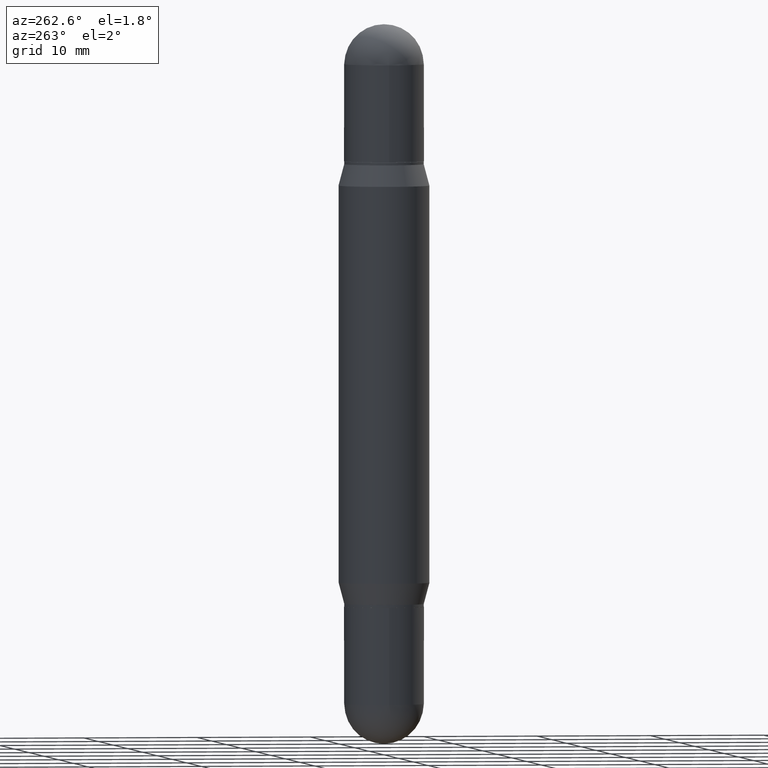
[diagram: clean part render]
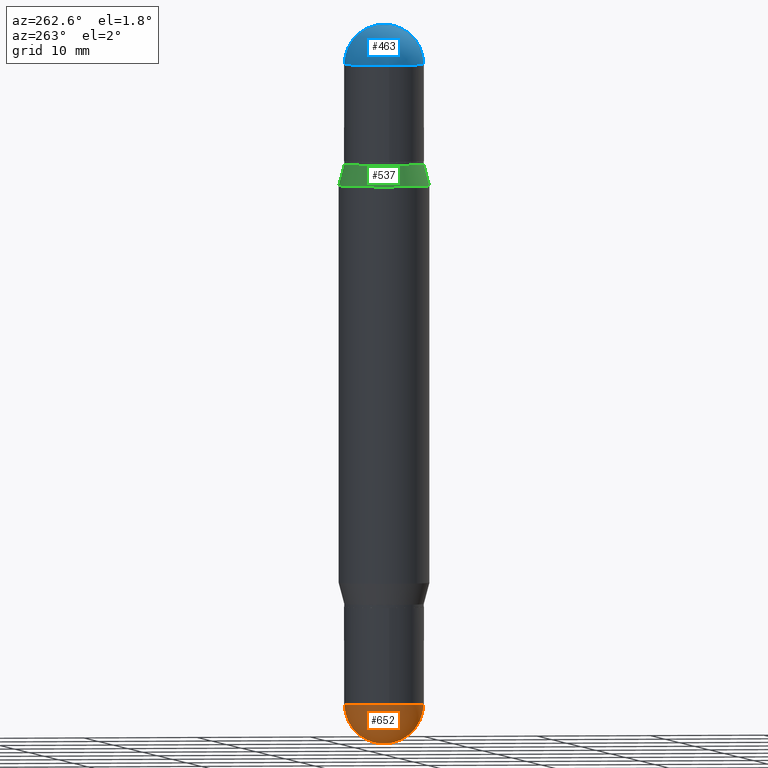
[diagram: same view with three faces highlighted in distinct colors, each labeled with its STEP entity id]
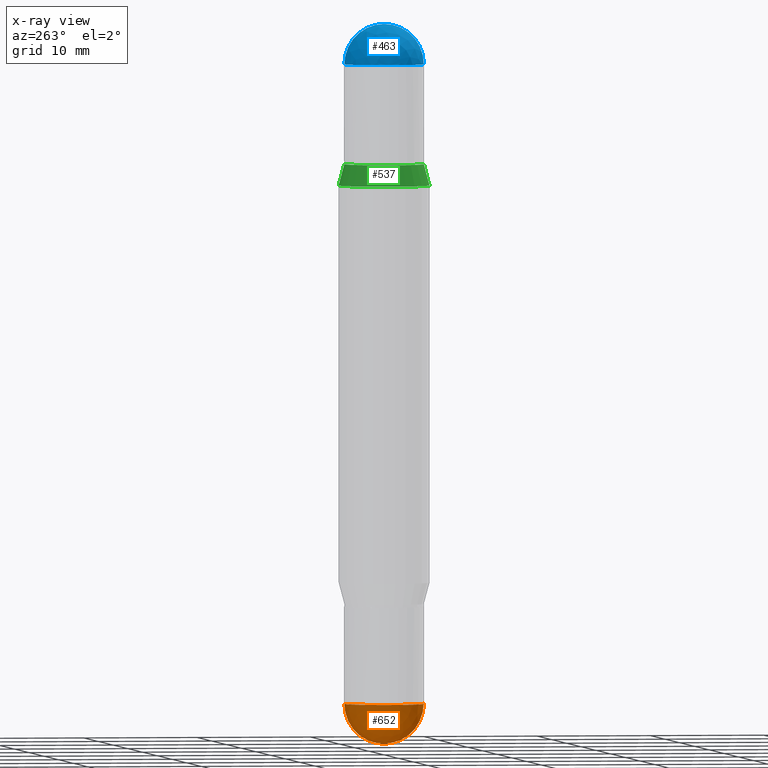
[diagram: x-ray of the same camera — body ghosted, the three highlighted faces saturated]
A machine part, auxiliary view with three faces highlighted in distinct colors.
The next image is the same camera in x-ray (body ghosted, the three faces saturated) — at least one of them is partly hidden behind the body in this view.
Their STEP definitions:

[orange] entity #652 — the highlighted spherical surface has radius 3.5001 mm.
#19 = DIRECTION ( 'NONE',  ( 6.982962677686265922E-15, 1.000000000000000000, -3.964946289788478530E-15 ) ) ;
#20 = CIRCLE ( 'NONE', #889, 0.1378000000000000613 ) ;
#29 = VERTEX_POINT ( 'NONE', #937 ) ;
#48 = EDGE_CURVE ( 'NONE', #29, #235, #565, .T. ) ;
#72 = CARTESIAN_POINT ( 'NONE',  ( 5.760493897703991812E-29, -8.132993245951958544E-15, -2.342500000000000249 ) ) ;
#104 = CARTESIAN_POINT ( 'NONE',  ( 5.760493897703991812E-29, -8.132993245951958544E-15, -2.342500000000000249 ) ) ;
#150 = EDGE_LOOP ( 'NONE', ( #788, #305, #218, #394 ) ) ;
#189 = CARTESIAN_POINT ( 'NONE',  ( 9.622522569852254583E-16, 0.1377999999999919289, -2.342500000000000693 ) ) ;
#196 = AXIS2_PLACEMENT_3D ( 'NONE', #874, #863, #958 ) ;
#218 = ORIENTED_EDGE ( 'NONE', *, *, #1049, .F. ) ;
#235 = VERTEX_POINT ( 'NONE', #189 ) ;
#276 = EDGE_CURVE ( 'NONE', #235, #980, #381, .T. ) ;
#305 = ORIENTED_EDGE ( 'NONE', *, *, #620, .T. ) ;
#352 = CARTESIAN_POINT ( 'NONE',  ( -9.791278898773611023E-16, -0.1378000000000082215, -2.342499999999999361 ) ) ;
#371 = DIRECTION ( 'NONE',  ( -1.000000000000000000, 6.982962677686265922E-15, -4.883557194083112901E-29 ) ) ;
#381 = CIRCLE ( 'NONE', #695, 0.1378000000000000891 ) ;
#394 = ORIENTED_EDGE ( 'NONE', *, *, #276, .F. ) ;
#492 = DIRECTION ( 'NONE',  ( 1.000000000000000000, -6.982962677686261977E-15, 0.000000000000000000 ) ) ;
#498 = CARTESIAN_POINT ( 'NONE',  ( 5.728510678488681895E-29, -8.178795036240068442E-15, -2.342499999999999805 ) ) ;
#515 = AXIS2_PLACEMENT_3D ( 'NONE', #72, #601, #771 ) ;
#543 = SPHERICAL_SURFACE ( 'NONE', #1004, 0.1378000000000000613 ) ;
#565 = CIRCLE ( 'NONE', #515, 0.1378000000000000613 ) ;
#584 = CARTESIAN_POINT ( 'NONE',  ( 5.760493897703991812E-29, -8.132993245951958544E-15, -2.342500000000000249 ) ) ;
#601 = DIRECTION ( 'NONE',  ( 1.000000000000000000, -6.982962677686265922E-15, 4.883557194083112340E-29 ) ) ;
#620 = EDGE_CURVE ( 'NONE', #29, #1091, #20, .T. ) ;
#652 = ADVANCED_FACE ( 'NONE', ( #789 ), #543, .T. ) ;
#688 = CARTESIAN_POINT ( 'NONE',  ( -0.1378000000000000891, -6.615542318374192176E-15, -2.342499999999999805 ) ) ;
#695 = AXIS2_PLACEMENT_3D ( 'NONE', #498, #733, #492 ) ;
#731 = CIRCLE ( 'NONE', #196, 0.1378000000000000891 ) ;
#733 = DIRECTION ( 'NONE',  ( -2.445468806185136597E-29, 3.491481338843145583E-15, 1.000000000000000000 ) ) ;
#771 = DIRECTION ( 'NONE',  ( 6.982962677686265922E-15, 1.000000000000000000, 0.000000000000000000 ) ) ;
#788 = ORIENTED_EDGE ( 'NONE', *, *, #48, .F. ) ;
#789 = FACE_OUTER_BOUND ( 'NONE', #150, .T. ) ;
#846 = DIRECTION ( 'NONE',  ( -1.000000000000000000, 7.105427357601001070E-15, -4.926315508542082329E-29 ) ) ;
#863 = DIRECTION ( 'NONE',  ( -2.445468806185136597E-29, 3.491481338843145583E-15, 1.000000000000000000 ) ) ;
#874 = CARTESIAN_POINT ( 'NONE',  ( 5.728510678488681895E-29, -8.178795036240068442E-15, -2.342499999999999805 ) ) ;
#889 = AXIS2_PLACEMENT_3D ( 'NONE', #584, #846, #925 ) ;
#925 = DIRECTION ( 'NONE',  ( -7.105427357601000281E-15, -1.000000000000000000, 0.000000000000000000 ) ) ;
#937 = CARTESIAN_POINT ( 'NONE',  ( 6.103371594928750541E-29, -8.605681557998418845E-15, -2.480300000000000171 ) ) ;
#958 = DIRECTION ( 'NONE',  ( 1.000000000000000000, -6.982962677686261977E-15, 0.000000000000000000 ) ) ;
#980 = VERTEX_POINT ( 'NONE', #688 ) ;
#1004 = AXIS2_PLACEMENT_3D ( 'NONE', #104, #371, #19 ) ;
#1049 = EDGE_CURVE ( 'NONE', #980, #1091, #731, .T. ) ;
#1091 = VERTEX_POINT ( 'NONE', #352 ) ;

[blue] entity #463 — the highlighted spherical surface has radius 3.5001 mm.
#41 = ORIENTED_EDGE ( 'NONE', *, *, #425, .F. ) ;
#50 = DIRECTION ( 'NONE',  ( 6.860497997771531562E-15, 1.000000000000000000, 0.000000000000000000 ) ) ;
#113 = DIRECTION ( 'NONE',  ( -1.000000000000000000, 6.982962677686265922E-15, 1.566701062080016245E-31 ) ) ;
#137 = VERTEX_POINT ( 'NONE', #719 ) ;
#142 = CARTESIAN_POINT ( 'NONE',  ( 5.760493897703991812E-29, -4.484057844052079423E-16, -0.1378000000000000891 ) ) ;
#155 = AXIS2_PLACEMENT_3D ( 'NONE', #142, #909, #50 ) ;
#163 = FACE_OUTER_BOUND ( 'NONE', #421, .T. ) ;
#173 = AXIS2_PLACEMENT_3D ( 'NONE', #509, #1099, #248 ) ;
#186 = EDGE_CURVE ( 'NONE', #137, #915, #984, .T. ) ;
#197 = CARTESIAN_POINT ( 'NONE',  ( 5.728510678488681895E-29, -4.942075746933196151E-16, -0.1378000000000003666 ) ) ;
#209 = CIRCLE ( 'NONE', #155, 0.1378000000000000613 ) ;
#248 = DIRECTION ( 'NONE',  ( 6.982962677686265922E-15, 1.000000000000000000, -3.469328003564919108E-15 ) ) ;
#345 = AXIS2_PLACEMENT_3D ( 'NONE', #349, #113, #785 ) ;
#349 = CARTESIAN_POINT ( 'NONE',  ( 5.760493897703991812E-29, -4.484057844052079423E-16, -0.1378000000000000891 ) ) ;
#421 = EDGE_LOOP ( 'NONE', ( #41, #716, #1055, #1003 ) ) ;
#425 = EDGE_CURVE ( 'NONE', #754, #915, #209, .T. ) ;
#426 = CARTESIAN_POINT ( 'NONE',  ( -9.453766240928600585E-16, -0.1378000000000005332, -0.1377999999999998948 ) ) ;
#438 = CIRCLE ( 'NONE', #519, 0.1378000000000000891 ) ;
#463 = ADVANCED_FACE ( 'NONE', ( #163 ), #1025, .T. ) ;
#485 = DIRECTION ( 'NONE',  ( 1.000000000000000000, -6.982962677686267499E-15, 0.000000000000000000 ) ) ;
#491 = CARTESIAN_POINT ( 'NONE',  ( 9.622522569852254583E-16, 0.1377999999999996172, -0.1378000000000008385 ) ) ;
#509 = CARTESIAN_POINT ( 'NONE',  ( 5.760493897703991812E-29, -4.484057844052079423E-16, -0.1378000000000000891 ) ) ;
#519 = AXIS2_PLACEMENT_3D ( 'NONE', #902, #833, #485 ) ;
#562 = CARTESIAN_POINT ( 'NONE',  ( 6.103371594928750541E-29, 3.952290559046230136E-17, -3.414809992080329023E-17 ) ) ;
#716 = ORIENTED_EDGE ( 'NONE', *, *, #725, .T. ) ;
#719 = CARTESIAN_POINT ( 'NONE',  ( -0.1378000000000000891, -1.309704509257909907E-16, -0.1378000000000003666 ) ) ;
#725 = EDGE_CURVE ( 'NONE', #754, #827, #986, .T. ) ;
#751 = EDGE_CURVE ( 'NONE', #827, #137, #438, .T. ) ;
#754 = VERTEX_POINT ( 'NONE', #562 ) ;
#785 = DIRECTION ( 'NONE',  ( -6.982962677686265922E-15, -1.000000000000000000, 0.000000000000000000 ) ) ;
#806 = DIRECTION ( 'NONE',  ( 2.445468806185136597E-29, 3.479614466977828254E-15, 1.000000000000000000 ) ) ;
#827 = VERTEX_POINT ( 'NONE', #491 ) ;
#833 = DIRECTION ( 'NONE',  ( 2.445468806185136597E-29, 3.479614466977828254E-15, 1.000000000000000000 ) ) ;
#895 = DIRECTION ( 'NONE',  ( 1.000000000000000000, -6.982962677686267499E-15, 0.000000000000000000 ) ) ;
#902 = CARTESIAN_POINT ( 'NONE',  ( 5.728510678488681895E-29, -4.942075746933196151E-16, -0.1378000000000003666 ) ) ;
#909 = DIRECTION ( 'NONE',  ( 1.000000000000000000, -6.860497997771530774E-15, -5.827999781331232286E-31 ) ) ;
#915 = VERTEX_POINT ( 'NONE', #426 ) ;
#984 = CIRCLE ( 'NONE', #1071, 0.1378000000000000891 ) ;
#986 = CIRCLE ( 'NONE', #345, 0.1378000000000000613 ) ;
#1003 = ORIENTED_EDGE ( 'NONE', *, *, #186, .T. ) ;
#1025 = SPHERICAL_SURFACE ( 'NONE', #173, 0.1378000000000000613 ) ;
#1055 = ORIENTED_EDGE ( 'NONE', *, *, #751, .T. ) ;
#1071 = AXIS2_PLACEMENT_3D ( 'NONE', #197, #806, #895 ) ;
#1099 = DIRECTION ( 'NONE',  ( 1.000000000000000000, -6.982962677686265922E-15, -1.566701062080046460E-31 ) ) ;

[green] entity #537 — the highlighted conical surface has half-angle 15 deg.
#77 = ORIENTED_EDGE ( 'NONE', *, *, #547, .T. ) ;
#143 = ORIENTED_EDGE ( 'NONE', *, *, #924, .T. ) ;
#152 = DIRECTION ( 'NONE',  ( -1.807323732225330534E-15, -0.2588190451025250138, -0.9659258262890670910 ) ) ;
#159 = VERTEX_POINT ( 'NONE', #790 ) ;
#207 = ORIENTED_EDGE ( 'NONE', *, *, #921, .F. ) ;
#255 = DIRECTION ( 'NONE',  ( 2.446900684487327434E-29, 3.481664998204017086E-15, 1.000000000000000000 ) ) ;
#307 = DIRECTION ( 'NONE',  ( -6.982962677686265922E-15, -1.000000000000000000, 3.469328003564920291E-15 ) ) ;
#312 = ORIENTED_EDGE ( 'NONE', *, *, #810, .F. ) ;
#334 = DIRECTION ( 'NONE',  ( 1.775627540710965497E-15, 0.2588190451025182415, -0.9659258262890689783 ) ) ;
#388 = DIRECTION ( 'NONE',  ( 2.446900684487327434E-29, 3.481664998204017086E-15, 1.000000000000000000 ) ) ;
#414 = FACE_OUTER_BOUND ( 'NONE', #883, .T. ) ;
#423 = DIRECTION ( 'NONE',  ( -2.446900684487327434E-29, -3.481664998204017086E-15, -1.000000000000000000 ) ) ;
#523 = LINE ( 'NONE', #866, #1051 ) ;
#537 = ADVANCED_FACE ( 'NONE', ( #414 ), #905, .T. ) ;
#547 = EDGE_CURVE ( 'NONE', #159, #554, #523, .T. ) ;
#554 = VERTEX_POINT ( 'NONE', #1028 ) ;
#579 = VERTEX_POINT ( 'NONE', #689 ) ;
#585 = CIRCLE ( 'NONE', #764, 0.1378000000000000058 ) ;
#588 = CARTESIAN_POINT ( 'NONE',  ( 4.708763311328271682E-29, -1.945162851841235390E-15, -0.5559214009091065778 ) ) ;
#640 = AXIS2_PLACEMENT_3D ( 'NONE', #588, #255, #683 ) ;
#659 = VECTOR ( 'NONE', #152, 39.37007874015748143 ) ;
#683 = DIRECTION ( 'NONE',  ( -6.982962677686264344E-15, -1.000000000000000000, 3.469013325287953293E-15 ) ) ;
#689 = CARTESIAN_POINT ( 'NONE',  ( -1.099816621735539754E-15, -0.1575000000000019440, -0.5559214009091061337 ) ) ;
#723 = CARTESIAN_POINT ( 'NONE',  ( -9.622522569851185676E-16, -0.1378000000000016989, -0.4823999999999995514 ) ) ;
#764 = AXIS2_PLACEMENT_3D ( 'NONE', #1000, #388, #307 ) ;
#769 = CARTESIAN_POINT ( 'NONE',  ( 4.888662877537232505E-29, -1.689185963677074620E-15, -0.4823999999999999955 ) ) ;
#790 = CARTESIAN_POINT ( 'NONE',  ( 9.453766240929659631E-16, 0.1377999999999983127, -0.4824000000000004951 ) ) ;
#810 = EDGE_CURVE ( 'NONE', #159, #825, #585, .T. ) ;
#825 = VERTEX_POINT ( 'NONE', #723 ) ;
#849 = CARTESIAN_POINT ( 'NONE',  ( -9.622522569851185676E-16, -0.1378000000000016989, -0.4823999999999995514 ) ) ;
#866 = CARTESIAN_POINT ( 'NONE',  ( 9.453766240929657659E-16, 0.1377999999999983127, -0.4824000000000004951 ) ) ;
#883 = EDGE_LOOP ( 'NONE', ( #312, #77, #143, #207 ) ) ;
#905 = CONICAL_SURFACE ( 'NONE', #961, 0.1378000000000000058, 0.2617993877991502960 ) ;
#921 = EDGE_CURVE ( 'NONE', #825, #579, #1098, .T. ) ;
#924 = EDGE_CURVE ( 'NONE', #554, #579, #1075, .T. ) ;
#961 = AXIS2_PLACEMENT_3D ( 'NONE', #769, #423, #1115 ) ;
#1000 = CARTESIAN_POINT ( 'NONE',  ( 4.888662877537232505E-29, -1.689185963677074620E-15, -0.4823999999999999955 ) ) ;
#1028 = CARTESIAN_POINT ( 'NONE',  ( 1.080528434649063111E-15, 0.1574999999999980582, -0.5559214009091071329 ) ) ;
#1051 = VECTOR ( 'NONE', #334, 39.37007874015748143 ) ;
#1075 = CIRCLE ( 'NONE', #640, 0.1575000000000000011 ) ;
#1098 = LINE ( 'NONE', #849, #659 ) ;
#1115 = DIRECTION ( 'NONE',  ( -6.982962677686265922E-15, -1.000000000000000000, 3.469328003564920291E-15 ) ) ;